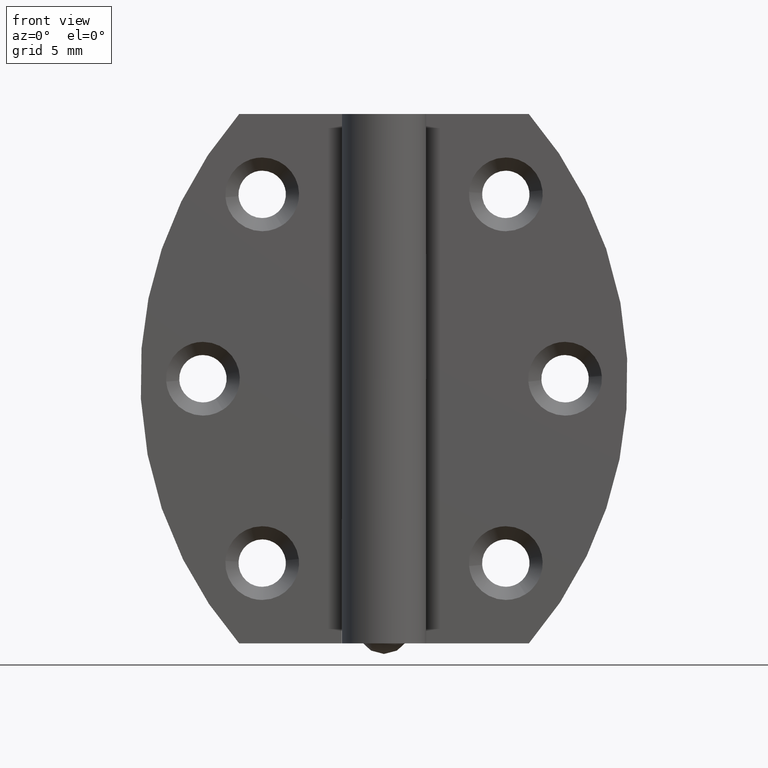
[diagram: clean part render]
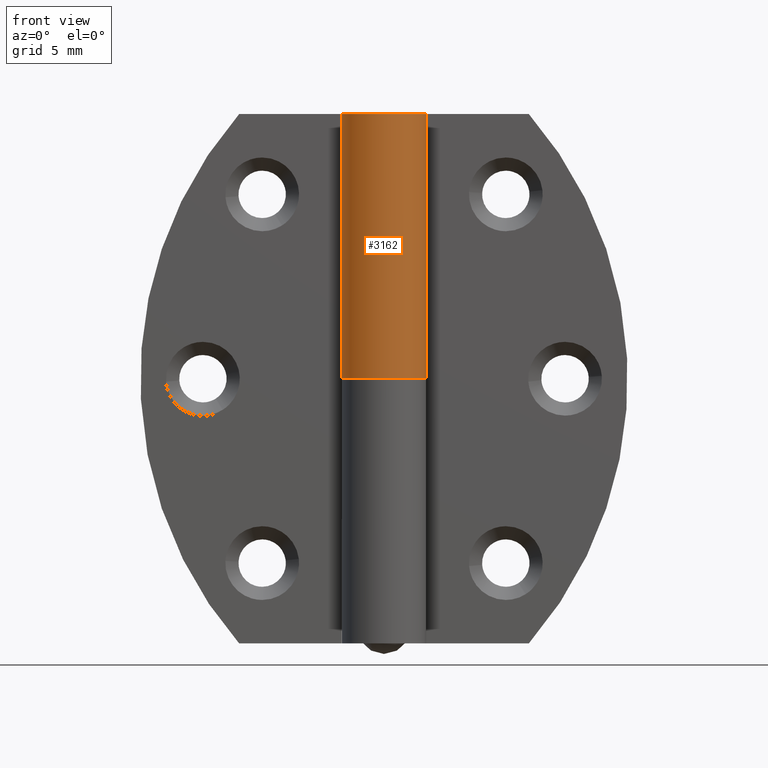
[diagram: same view with one face highlighted and labeled with its STEP entity id]
A machine part, front view. The second image highlights one B-rep face of the part: STEP entity #3162.
In plain terms, the highlighted face is a freeform B-spline surface patch.
Its self-contained STEP definition (entity closure, byte-faithful):
#2878=CARTESIAN_POINT('',(-2.537224152494410,1.950000000000000,20.099998000000049));
#2879=VERTEX_POINT('',#2878);
#2880=CARTESIAN_POINT('',(0.0,3.200000999999955,20.099998000000099));
#2881=VERTEX_POINT('',#2880);
#2882=CARTESIAN_POINT('',(-2.537224152494412,1.950000000000004,20.099998000000049));
#2883=CARTESIAN_POINT('',(-4.085161487703948,-0.064084099200747,20.099998000000049));
#2884=CARTESIAN_POINT('',(-2.474811311163727,-2.028624010046484,20.099998000000049));
#2885=CARTESIAN_POINT('',(-0.864461134623508,-3.993163920892221,20.099998000000049));
#2886=CARTESIAN_POINT('',(1.414214349029347,-2.870540746096543,20.099998000000049));
#2887=CARTESIAN_POINT('',(3.692889832682197,-1.747917571300869,20.099998000000049));
#2888=CARTESIAN_POINT('',(3.116547742137981,0.726041714349563,20.099998000000049));
#2889=CARTESIAN_POINT('',(2.540205651593765,3.200001000000000,20.099998000000049));
#2890=CARTESIAN_POINT('',(0.0,3.200000999999955,20.099998000000099));
#2898=(BOUNDED_CURVE()B_SPLINE_CURVE(2,(#2882,#2883,#2884,#2885,#2886,#2887,#2888,#2889,#2890),.UNSPECIFIED.,.F.,.U.)B_SPLINE_CURVE_WITH_KNOTS((3,2,2,2,3),(0.0,0.250000000000000,0.500000000000000,0.750000000000000,1.0),.UNSPECIFIED.)CURVE()GEOMETRIC_REPRESENTATION_ITEM()RATIONAL_B_SPLINE_CURVE((1.0,0.783226648177828,1.0,0.783226648177828,1.0,0.783226648177828,1.0,0.783226648177828,1.0))REPRESENTATION_ITEM(''));
#2899=EDGE_CURVE('',#2879,#2881,#2898,.T.);
#3009=CARTESIAN_POINT('',(1.959371E-016,3.200001000000000,40.199997000000103));
#3010=VERTEX_POINT('',#3009);
#3045=CARTESIAN_POINT('',(-2.537224152494410,1.950000000000000,40.199997000000103));
#3046=VERTEX_POINT('',#3045);
#3052=CARTESIAN_POINT('',(0.0,3.200001000000000,40.199997000000103));
#3053=CARTESIAN_POINT('',(2.540205651593764,3.200001000000001,40.199997000000103));
#3054=CARTESIAN_POINT('',(3.116547742137981,0.726041714349565,40.199997000000103));
#3055=CARTESIAN_POINT('',(3.692889832682198,-1.747917571300869,40.199997000000103));
#3056=CARTESIAN_POINT('',(1.414214349029346,-2.870540746096544,40.199997000000103));
#3057=CARTESIAN_POINT('',(-0.864461134623506,-3.993163920892219,40.199997000000103));
#3058=CARTESIAN_POINT('',(-2.474811311163726,-2.028624010046485,40.199997000000103));
#3059=CARTESIAN_POINT('',(-4.085161487703948,-0.064084099200750,40.199997000000103));
#3060=CARTESIAN_POINT('',(-2.537224152494413,1.950000000000002,40.199997000000103));
#3068=(BOUNDED_CURVE()B_SPLINE_CURVE(2,(#3052,#3053,#3054,#3055,#3056,#3057,#3058,#3059,#3060),.UNSPECIFIED.,.F.,.U.)B_SPLINE_CURVE_WITH_KNOTS((3,2,2,2,3),(0.0,0.250000000000000,0.500000000000000,0.750000000000000,1.0),.UNSPECIFIED.)CURVE()GEOMETRIC_REPRESENTATION_ITEM()RATIONAL_B_SPLINE_CURVE((1.0,0.783226648177828,1.0,0.783226648177828,1.0,0.783226648177828,1.0,0.783226648177828,1.0))REPRESENTATION_ITEM(''));
#3069=EDGE_CURVE('',#3010,#3046,#3068,.T.);
#3104=CARTESIAN_POINT('',(1.959371E-016,3.200001000000000,40.199997000000103));
#3105=CARTESIAN_POINT('',(0.0,3.200000999999955,20.099998000000099));
#3106=QUASI_UNIFORM_CURVE('',1,(#3104,#3105),.UNSPECIFIED.,.F.,.U.);
#3107=EDGE_CURVE('',#3010,#2881,#3106,.T.);
#3130=CARTESIAN_POINT('',(-2.485309659945584,2.015748569187675,40.702496975000102));
#3131=CARTESIAN_POINT('',(-2.485309659945584,2.015748569187675,19.584935525625049));
#3132=CARTESIAN_POINT('',(-5.065350173682520,-1.165302733468301,40.702496975000109));
#3133=CARTESIAN_POINT('',(-5.065350173682520,-1.165302733468301,19.584935525625042));
#3134=CARTESIAN_POINT('',(-1.354621397843555,-2.899139056427849,40.702496975000102));
#3135=CARTESIAN_POINT('',(-1.354621397843555,-2.899139056427849,19.584935525625049));
#3136=CARTESIAN_POINT('',(2.356107377995409,-4.632975379387398,40.702496975000109));
#3137=CARTESIAN_POINT('',(2.356107377995409,-4.632975379387398,19.584935525625042));
#3138=CARTESIAN_POINT('',(3.140734812717951,-0.613018136911560,40.702496975000102));
#3139=CARTESIAN_POINT('',(3.140734812717951,-0.613018136911560,19.584935525625049));
#3140=CARTESIAN_POINT('',(3.925362247440495,3.406939105564278,40.702496975000109));
#3141=CARTESIAN_POINT('',(3.925362247440495,3.406939105564278,19.584935525625042));
#3142=CARTESIAN_POINT('',(-0.165003641093633,3.195744075865092,40.702496975000102));
#3143=CARTESIAN_POINT('',(-0.165003641093633,3.195744075865092,19.584935525625049));
#3151=(BOUNDED_SURFACE()B_SPLINE_SURFACE(1,2,((#3130,#3132,#3134,#3136,#3138,#3140,#3142),(#3131,#3133,#3135,#3137,#3139,#3141,#3143)),.UNSPECIFIED.,.F.,.F.,.U.)B_SPLINE_SURFACE_WITH_KNOTS((2,2),(3,2,2,3),(0.0,21.117561449375060),(0.0,6.242979084573377,12.485958169146750,18.728937253720130),.UNSPECIFIED.)GEOMETRIC_REPRESENTATION_ITEM()RATIONAL_B_SPLINE_SURFACE(((1.0,0.615661475325658,1.0,0.615661475325658,1.0,0.615661475325658,1.0),(1.0,0.615661475325658,1.0,0.615661475325658,1.0,0.615661475325658,1.0)))REPRESENTATION_ITEM('')SURFACE());
#3152=CARTESIAN_POINT('',(-2.537224152494410,1.950000000000000,40.199997000000103));
#3153=CARTESIAN_POINT('',(-2.537224152494410,1.950000000000000,20.099998000000049));
#3154=QUASI_UNIFORM_CURVE('',1,(#3152,#3153),.UNSPECIFIED.,.F.,.U.);
#3155=EDGE_CURVE('',#3046,#2879,#3154,.T.);
#3156=ORIENTED_EDGE('',*,*,#3155,.T.);
#3157=ORIENTED_EDGE('',*,*,#2899,.T.);
#3158=ORIENTED_EDGE('',*,*,#3107,.F.);
#3159=ORIENTED_EDGE('',*,*,#3069,.T.);
#3160=EDGE_LOOP('',(#3156,#3157,#3158,#3159));
#3161=FACE_OUTER_BOUND('',#3160,.T.);
#3162=ADVANCED_FACE('',(#3161),#3151,.T.);